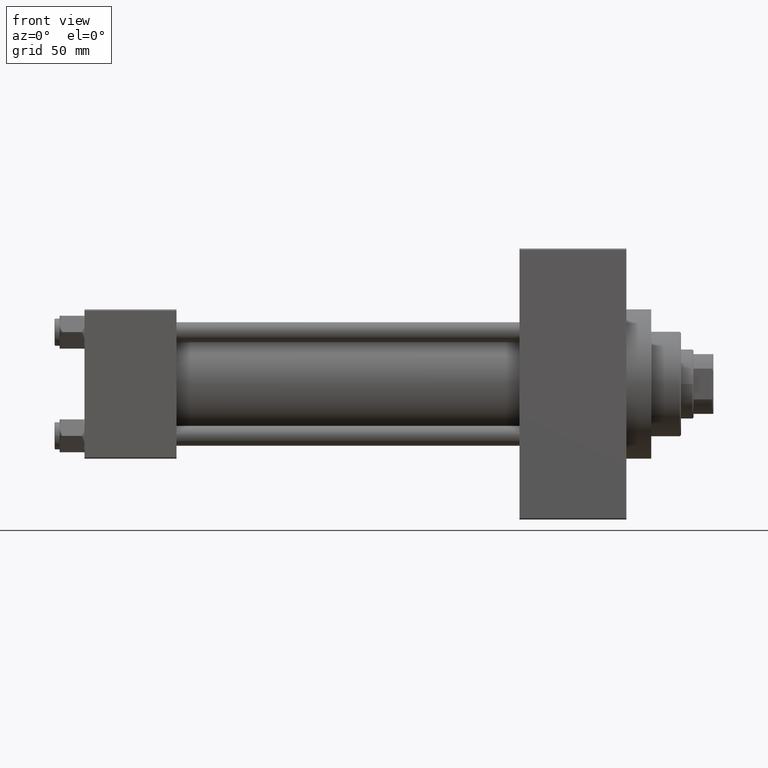
[diagram: clean part render]
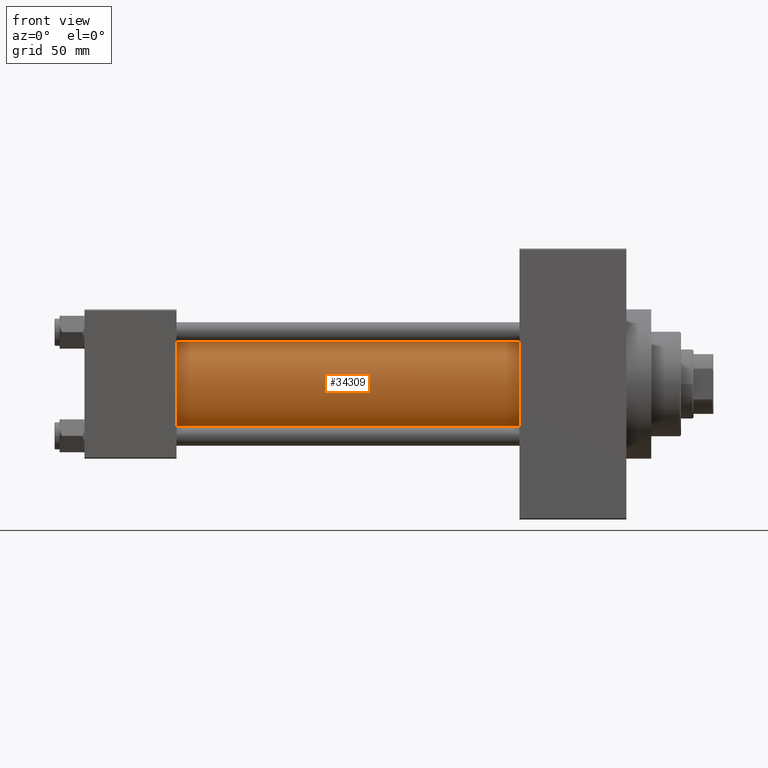
[diagram: same view with one face highlighted and labeled with its STEP entity id]
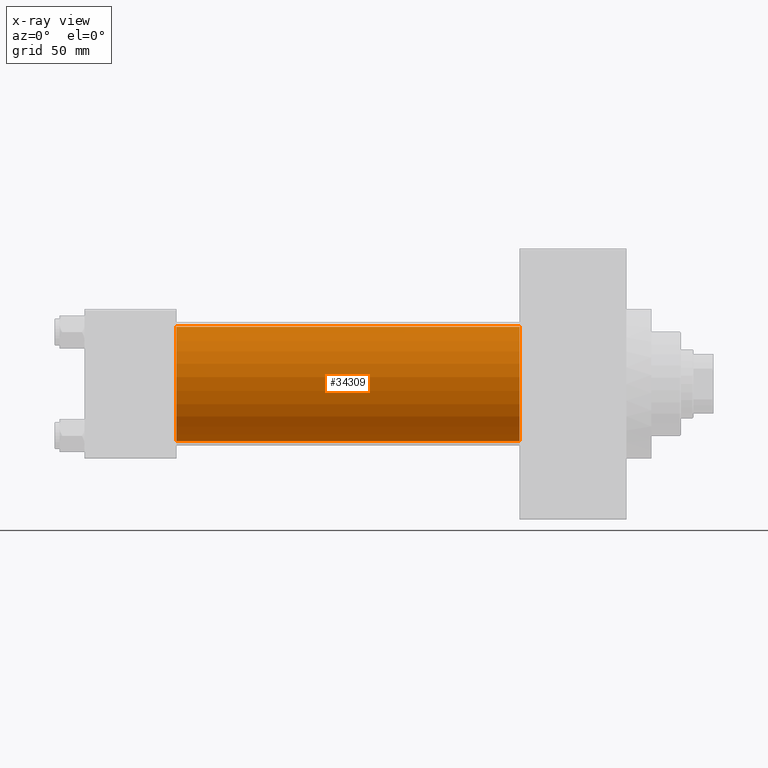
[diagram: x-ray of the same camera — body ghosted, the highlighted face saturated]
A machine part, front view. The second image highlights one B-rep face of the part: STEP entity #34309.
The next image is the same camera in x-ray: the body ghosted, the highlighted face saturated — about 0% of this face is hidden behind the body in this view.
In plain terms, the highlighted cylindrical surface (partial cylindrical patch) has radius 23 mm, axis along (-1, -0, -0).
Its self-contained STEP definition (entity closure, byte-faithful):
#170 = FACE_OUTER_BOUND ( 'NONE', #5838, .T. ) ;
#5838 = EDGE_LOOP ( 'NONE', ( #8662, #30320, #38526, #34604 ) ) ;
#7225 = DIRECTION ( 'NONE',  ( 0.000000000000000000, 0.000000000000000000, -1.000000000000000000 ) ) ;
#7410 = DIRECTION ( 'NONE',  ( 0.000000000000000000, 0.000000000000000000, 1.000000000000000000 ) ) ;
#7907 = DIRECTION ( 'NONE',  ( -1.000000000000000000, -0.000000000000000000, -0.000000000000000000 ) ) ;
#8588 = DIRECTION ( 'NONE',  ( -1.000000000000000000, -0.000000000000000000, -0.000000000000000000 ) ) ;
#8662 = ORIENTED_EDGE ( 'NONE', *, *, #48024, .F. ) ;
#11149 = CARTESIAN_POINT ( 'NONE',  ( 175.0000000000000284, -2.602085213965210642E-15, 0.000000000000000000 ) ) ;
#11996 = DIRECTION ( 'NONE',  ( 0.000000000000000000, 0.000000000000000000, 1.000000000000000000 ) ) ;
#12069 = CIRCLE ( 'NONE', #24796, 23.00000000000000000 ) ;
#12076 = CARTESIAN_POINT ( 'NONE',  ( 175.0000000000000284, 2.146024240737016609E-16, -23.00000000000000000 ) ) ;
#12153 = CARTESIAN_POINT ( 'NONE',  ( 175.0000000000000284, 2.146024240737016609E-16, -23.00000000000000000 ) ) ;
#14640 = CYLINDRICAL_SURFACE ( 'NONE', #43931, 23.00000000000000000 ) ;
#15561 = LINE ( 'NONE', #42711, #21442 ) ;
#15730 = CARTESIAN_POINT ( 'NONE',  ( 37.00000000000000711, -2.602085213965210642E-15, 0.000000000000000000 ) ) ;
#16162 = VERTEX_POINT ( 'NONE', #17559 ) ;
#16912 = CARTESIAN_POINT ( 'NONE',  ( 175.0000000000000284, -2.602085213965210642E-15, 23.00000000000000000 ) ) ;
#17559 = CARTESIAN_POINT ( 'NONE',  ( 37.00000000000000711, -2.602085213965210642E-15, 23.00000000000000000 ) ) ;
#18992 = VERTEX_POINT ( 'NONE', #12153 ) ;
#19312 = CIRCLE ( 'NONE', #41579, 23.00000000000000000 ) ;
#21442 = VECTOR ( 'NONE', #8588, 1000.000000000000000 ) ;
#22673 = VERTEX_POINT ( 'NONE', #16912 ) ;
#23531 = DIRECTION ( 'NONE',  ( -1.000000000000000000, -0.000000000000000000, -0.000000000000000000 ) ) ;
#24796 = AXIS2_PLACEMENT_3D ( 'NONE', #30883, #30383, #7225 ) ;
#26400 = EDGE_CURVE ( 'NONE', #22673, #16162, #15561, .T. ) ;
#30320 = ORIENTED_EDGE ( 'NONE', *, *, #36559, .F. ) ;
#30383 = DIRECTION ( 'NONE',  ( 1.000000000000000000, 0.000000000000000000, 0.000000000000000000 ) ) ;
#30767 = VECTOR ( 'NONE', #23531, 1000.000000000000000 ) ;
#30883 = CARTESIAN_POINT ( 'NONE',  ( 175.0000000000000284, -2.602085213965210642E-15, 0.000000000000000000 ) ) ;
#33956 = CARTESIAN_POINT ( 'NONE',  ( 37.00000000000000711, 2.146024240737016609E-16, -23.00000000000000000 ) ) ;
#34309 = ADVANCED_FACE ( 'NONE', ( #170 ), #14640, .T. ) ;
#34604 = ORIENTED_EDGE ( 'NONE', *, *, #38294, .T. ) ;
#36559 = EDGE_CURVE ( 'NONE', #22673, #18992, #12069, .T. ) ;
#38294 = EDGE_CURVE ( 'NONE', #16162, #47000, #19312, .T. ) ;
#38526 = ORIENTED_EDGE ( 'NONE', *, *, #26400, .T. ) ;
#41579 = AXIS2_PLACEMENT_3D ( 'NONE', #15730, #46618, #11996 ) ;
#42711 = CARTESIAN_POINT ( 'NONE',  ( 175.0000000000000284, -2.602085213965210642E-15, 23.00000000000000000 ) ) ;
#43931 = AXIS2_PLACEMENT_3D ( 'NONE', #11149, #7907, #7410 ) ;
#46203 = LINE ( 'NONE', #12076, #30767 ) ;
#46618 = DIRECTION ( 'NONE',  ( 1.000000000000000000, -0.000000000000000000, 0.000000000000000000 ) ) ;
#47000 = VERTEX_POINT ( 'NONE', #33956 ) ;
#48024 = EDGE_CURVE ( 'NONE', #18992, #47000, #46203, .T. ) ;